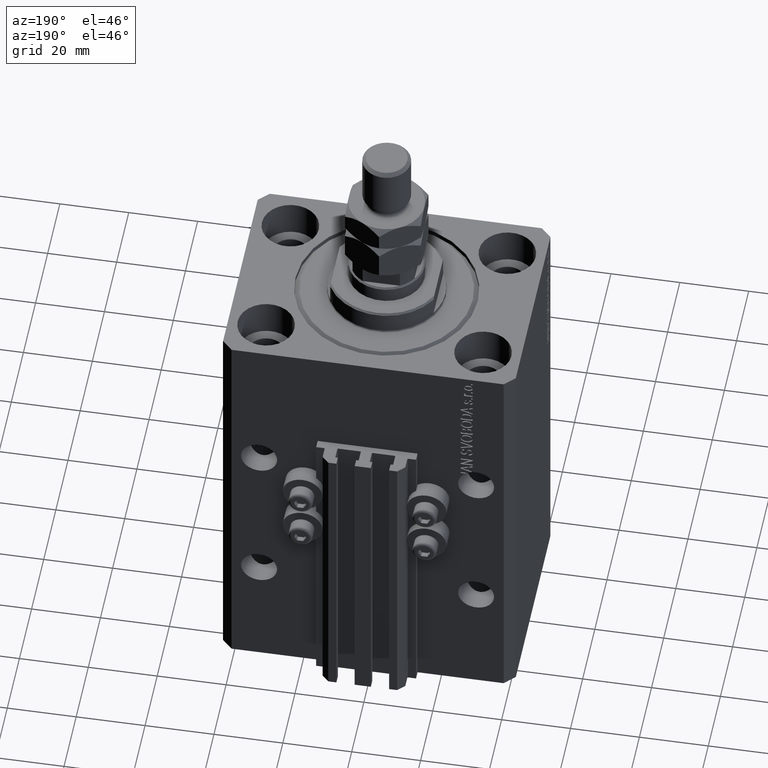
[diagram: clean part render]
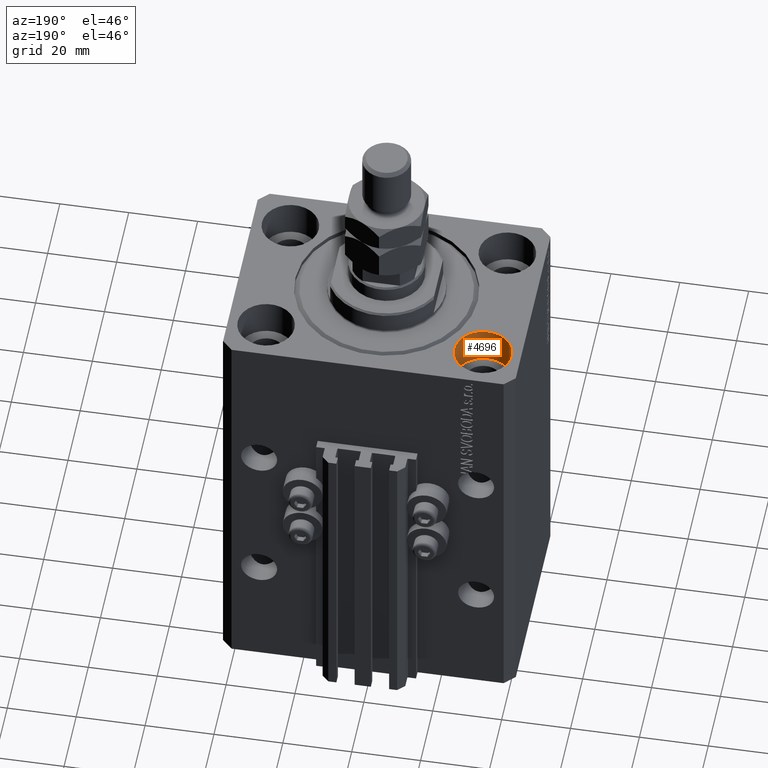
[diagram: same view with one face highlighted and labeled with its STEP entity id]
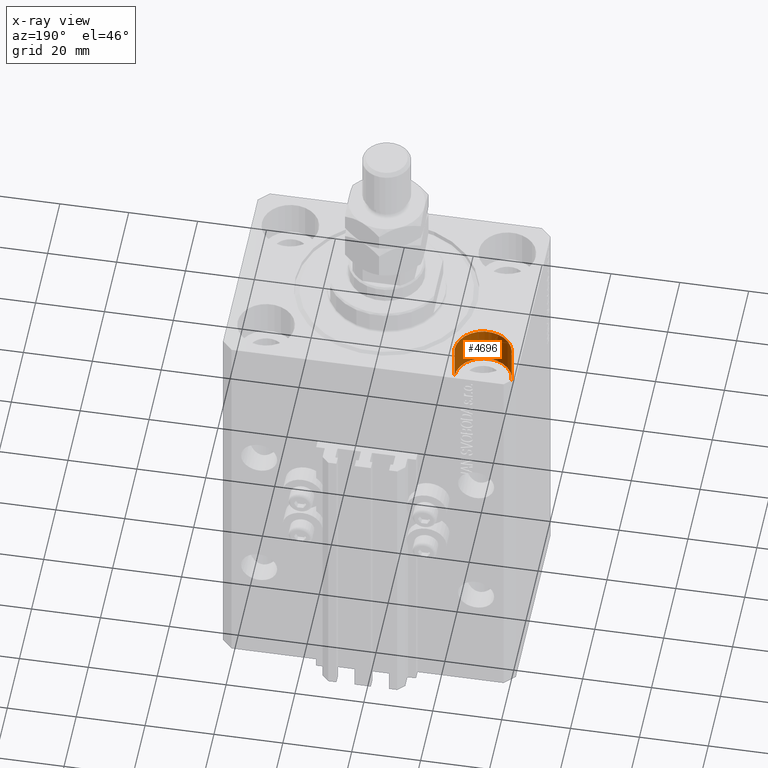
[diagram: x-ray of the same camera — body ghosted, the highlighted face saturated]
A machine part, auxiliary view. The second image highlights one B-rep face of the part: STEP entity #4696.
The next image is the same camera in x-ray: the body ghosted, the highlighted face saturated — about 0% of this face is hidden behind the body in this view.
In plain terms, the highlighted cylindrical surface (edge-blend (fillet) strip) has radius 8.25 mm, axis along (0, 0, 1).
Its self-contained STEP definition (entity closure, byte-faithful):
#1961 = EDGE_CURVE ( 'NONE', #32895, #46109, #33168, .T. ) ;
#2735 = CYLINDRICAL_SURFACE ( 'NONE', #19660, 8.250000000000000000 ) ;
#2866 = DIRECTION ( 'NONE',  ( -0.000000000000000000, -0.000000000000000000, 1.000000000000000000 ) ) ;
#3155 = EDGE_CURVE ( 'NONE', #21393, #36910, #26802, .T. ) ;
#4696 = ADVANCED_FACE ( 'NONE', ( #10296 ), #2735, .F. ) ;
#5081 = AXIS2_PLACEMENT_3D ( 'NONE', #44769, #24906, #32931 ) ;
#6482 = ORIENTED_EDGE ( 'NONE', *, *, #1961, .F. ) ;
#7684 = DIRECTION ( 'NONE',  ( 0.000000000000000000, 0.000000000000000000, 1.000000000000000000 ) ) ;
#8085 = CARTESIAN_POINT ( 'NONE',  ( -39.75000000000000000, 20.00000000000000000, -11.00000000000000000 ) ) ;
#10296 = FACE_OUTER_BOUND ( 'NONE', #13082, .T. ) ;
#13082 = EDGE_LOOP ( 'NONE', ( #6482, #34699, #31144, #46175 ) ) ;
#13098 = AXIS2_PLACEMENT_3D ( 'NONE', #45910, #7684, #23033 ) ;
#14940 = CARTESIAN_POINT ( 'NONE',  ( -39.75000000000000000, 20.00000000000000000, -11.00000000000000000 ) ) ;
#15279 = CARTESIAN_POINT ( 'NONE',  ( -23.25000000000000000, 20.00000000000000000, 0.000000000000000000 ) ) ;
#19660 = AXIS2_PLACEMENT_3D ( 'NONE', #36432, #21608, #36943 ) ;
#21393 = VERTEX_POINT ( 'NONE', #45767 ) ;
#21608 = DIRECTION ( 'NONE',  ( -0.000000000000000000, -0.000000000000000000, 1.000000000000000000 ) ) ;
#23033 = DIRECTION ( 'NONE',  ( 1.000000000000000000, 0.000000000000000000, 0.000000000000000000 ) ) ;
#24906 = DIRECTION ( 'NONE',  ( 0.000000000000000000, 0.000000000000000000, 1.000000000000000000 ) ) ;
#26802 = CIRCLE ( 'NONE', #13098, 8.250000000000000000 ) ;
#30014 = LINE ( 'NONE', #14940, #44731 ) ;
#30513 = VECTOR ( 'NONE', #2866, 1000.000000000000000 ) ;
#30528 = EDGE_CURVE ( 'NONE', #32895, #21393, #30014, .T. ) ;
#31144 = ORIENTED_EDGE ( 'NONE', *, *, #3155, .T. ) ;
#32895 = VERTEX_POINT ( 'NONE', #8085 ) ;
#32931 = DIRECTION ( 'NONE',  ( 1.000000000000000000, 0.000000000000000000, 0.000000000000000000 ) ) ;
#33168 = CIRCLE ( 'NONE', #5081, 8.250000000000000000 ) ;
#34699 = ORIENTED_EDGE ( 'NONE', *, *, #30528, .T. ) ;
#36432 = CARTESIAN_POINT ( 'NONE',  ( -31.50000000000000000, 20.00000000000000000, -11.00000000000000000 ) ) ;
#36844 = CARTESIAN_POINT ( 'NONE',  ( -23.25000000000000000, 20.00000000000000000, -11.00000000000000000 ) ) ;
#36910 = VERTEX_POINT ( 'NONE', #15279 ) ;
#36943 = DIRECTION ( 'NONE',  ( 1.000000000000000000, 0.000000000000000000, 0.000000000000000000 ) ) ;
#37313 = CARTESIAN_POINT ( 'NONE',  ( -23.25000000000000000, 20.00000000000000000, -11.00000000000000000 ) ) ;
#40685 = EDGE_CURVE ( 'NONE', #46109, #36910, #45117, .T. ) ;
#42337 = DIRECTION ( 'NONE',  ( -0.000000000000000000, -0.000000000000000000, 1.000000000000000000 ) ) ;
#44731 = VECTOR ( 'NONE', #42337, 1000.000000000000000 ) ;
#44769 = CARTESIAN_POINT ( 'NONE',  ( -31.50000000000000000, 20.00000000000000000, -11.00000000000000000 ) ) ;
#45117 = LINE ( 'NONE', #37313, #30513 ) ;
#45767 = CARTESIAN_POINT ( 'NONE',  ( -39.75000000000000000, 20.00000000000000000, 0.000000000000000000 ) ) ;
#45910 = CARTESIAN_POINT ( 'NONE',  ( -31.50000000000000000, 20.00000000000000000, 0.000000000000000000 ) ) ;
#46109 = VERTEX_POINT ( 'NONE', #36844 ) ;
#46175 = ORIENTED_EDGE ( 'NONE', *, *, #40685, .F. ) ;